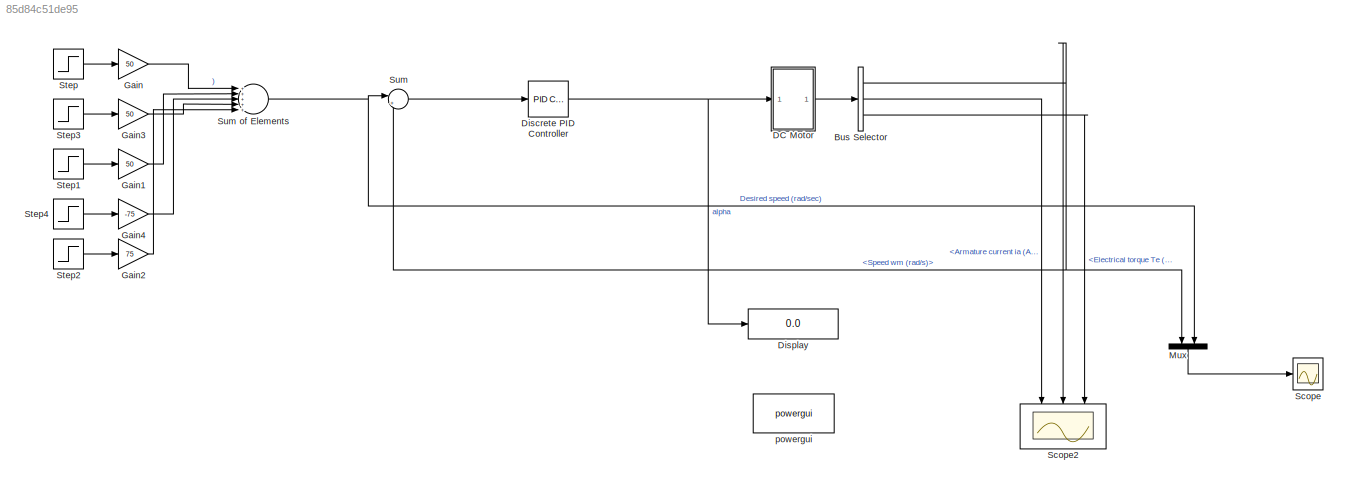
MODEL slx_85d84c51de95
KIND model
CONFIG AbsTol = auto
CONFIG EnableMultiTasking = off
CONFIG FixedStep = auto
CONFIG MaxStep = auto
CONFIG MinStep = auto
CONFIG RelTol = 1e-3
CONFIG SampleTimeConstraint = Unconstrained
CONFIG Solver = VariableStepAuto
CONFIG SolverName = VariableStepAuto
CONFIG StartTime = 0.0
CONFIG StopTime = 35
BLOCK [BusSelector] Bus Selector
  OutputAsBus = off
  OutputSignals = Speed wm (rad/s),Armature current ia (A),Electrical torque Te (n m)
  Ports = [1, 3]
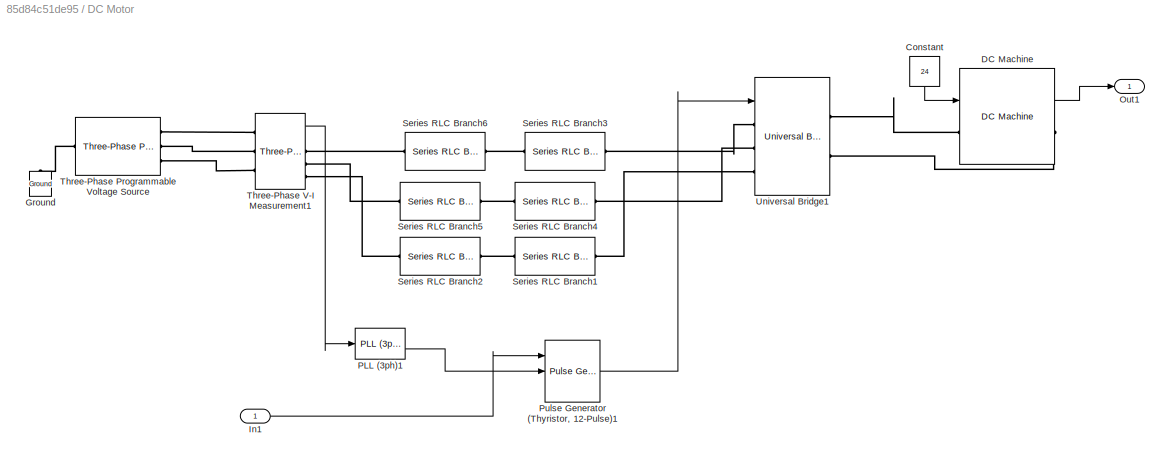
BLOCK [SubSystem] DC Motor
  Ports = [1, 1]
  RequestExecContextInheritance = off
BLOCK [Constant] DC Motor/Constant
  Value = 24
BLOCK [Reference] DC Motor/DC Machine  REF=powerlib/Machines/DC Machine
  Ports = [1, 1, 0, 0, 0, 1, 1]
  SourceBlock = powerlib/Machines/DC Machine
  SourceProductBaseCode = PS
  SourceProductName = Simscape Power Systems
  SourceType = DC machine
BLOCK [Reference] DC Motor/Ground  REF=powerlib/Elements/Ground
  Ports = [0, 0, 0, 0, 0, 1]
  SourceBlock = powerlib/Elements/Ground
  SourceProductBaseCode = PS
  SourceProductName = Simscape Power Systems
  SourceType = Ground
BLOCK [Inport] DC Motor/In1
  IconDisplay = Port number
BLOCK [Outport] DC Motor/Out1
  IconDisplay = Port number
BLOCK [Reference] DC Motor/PLL (3ph)1  REF=powerlib_meascontrol/PLL/PLL
(3ph)
  Ports = [1, 2]
  SourceBlock = powerlib_meascontrol/PLL/PLL\n(3ph)
  SourceProductBaseCode = PS
  SourceProductName = Simscape Power Systems
  SourceType = PLL (3ph)
BLOCK [Reference] DC Motor/Pulse Generator (Thyristor, 12-Pulse)1  REF=powerlib_meascontrol/Pulse & Signal
Generators/Pulse Generator
(Thyristor, 12-Pulse)
  Ports = [3, 1]
  SourceBlock = powerlib_meascontrol/Pulse & Signal\nGenerators/Pulse Generator\n(Thyristor, 12-Pulse)
  SourceProductBaseCode = PS
  SourceProductName = Simscape Power Systems
  SourceType = Pulse Generator (Thyristor)
BLOCK [Reference] DC Motor/Series RLC Branch1  REF=powerlib/Elements/Series RLC Branch
  Ports = [0, 0, 0, 0, 0, 1, 1]
  SourceBlock = powerlib/Elements/Series RLC Branch
  SourceProductBaseCode = PS
  SourceProductName = Simscape Power Systems
  SourceType = Series RLC Branch
BLOCK [Reference] DC Motor/Series RLC Branch2  REF=powerlib/Elements/Series RLC Branch
  Ports = [0, 0, 0, 0, 0, 1, 1]
  SourceBlock = powerlib/Elements/Series RLC Branch
  SourceProductBaseCode = PS
  SourceProductName = Simscape Power Systems
  SourceType = Series RLC Branch
BLOCK [Reference] DC Motor/Series RLC Branch3  REF=powerlib/Elements/Series RLC Branch
  Ports = [0, 0, 0, 0, 0, 1, 1]
  SourceBlock = powerlib/Elements/Series RLC Branch
  SourceProductBaseCode = PS
  SourceProductName = Simscape Power Systems
  SourceType = Series RLC Branch
BLOCK [Reference] DC Motor/Series RLC Branch4  REF=powerlib/Elements/Series RLC Branch
  Ports = [0, 0, 0, 0, 0, 1, 1]
  SourceBlock = powerlib/Elements/Series RLC Branch
  SourceProductBaseCode = PS
  SourceProductName = Simscape Power Systems
  SourceType = Series RLC Branch
BLOCK [Reference] DC Motor/Series RLC Branch5  REF=powerlib/Elements/Series RLC Branch
  Ports = [0, 0, 0, 0, 0, 1, 1]
  SourceBlock = powerlib/Elements/Series RLC Branch
  SourceProductBaseCode = PS
  SourceProductName = Simscape Power Systems
  SourceType = Series RLC Branch
BLOCK [Reference] DC Motor/Series RLC Branch6  REF=powerlib/Elements/Series RLC Branch
  Ports = [0, 0, 0, 0, 0, 1, 1]
  SourceBlock = powerlib/Elements/Series RLC Branch
  SourceProductBaseCode = PS
  SourceProductName = Simscape Power Systems
  SourceType = Series RLC Branch
BLOCK [Reference] DC Motor/Three-Phase Programmable Voltage Source  REF=powerlib/Electrical
Sources/Three-Phase
Programmable
Voltage Source
  Ports = [0, 0, 0, 0, 0, 1, 3]
  SourceBlock = powerlib/Electrical\nSources/Three-Phase\nProgrammable\nVoltage Source
  SourceProductBaseCode = PS
  SourceProductName = Simscape Power Systems
  SourceType = Three-Phase Programmable Voltage Source
BLOCK [Reference] DC Motor/Three-Phase V-I Measurement1  REF=powerlib/Measurements/Three-Phase
V-I Measurement
  Ports = [0, 2, 0, 0, 0, 3, 3]
  SourceBlock = powerlib/Measurements/Three-Phase\nV-I Measurement
  SourceProductBaseCode = PS
  SourceProductName = Simscape Power Systems
  SourceType = Three-Phase VI Measurement
BLOCK [Reference] DC Motor/Universal Bridge1  REF=powerlib/Power
Electronics/Universal Bridge
  Ports = [1, 0, 0, 0, 0, 3, 2]
  SourceBlock = powerlib/Power\nElectronics/Universal Bridge
  SourceProductBaseCode = PS
  SourceProductName = Simscape Power Systems
  SourceType = Universal Bridge
BLOCK [Reference] Discrete PID Controller  REF=simulink/Continuous/PID Controller
  Ports = [1, 1]
  SourceBlock = simulink/Continuous/PID Controller
  SourceProductBaseCode = SL
  SourceProductName = Simulink
  SourceType = PID 1dof
BLOCK [Display] Display
  Decimation = 1
  Ports = [1]
BLOCK [Gain] Gain
  Gain = 50
  OutDataTypeStr = Inherit: Inherit via internal rule
  ParamDataTypeStr = Inherit: Inherit via internal rule
  SaturateOnIntegerOverflow = off
BLOCK [Gain] Gain1
  Gain = 50
  OutDataTypeStr = Inherit: Inherit via internal rule
  ParamDataTypeStr = Inherit: Inherit via internal rule
  SaturateOnIntegerOverflow = off
BLOCK [Gain] Gain2
  Gain = 75
  OutDataTypeStr = Inherit: Inherit via internal rule
  ParamDataTypeStr = Inherit: Inherit via internal rule
  SaturateOnIntegerOverflow = off
BLOCK [Gain] Gain3
  Gain = 50
  OutDataTypeStr = Inherit: Inherit via internal rule
  ParamDataTypeStr = Inherit: Inherit via internal rule
  SaturateOnIntegerOverflow = off
BLOCK [Gain] Gain4
  Gain = -75
  OutDataTypeStr = Inherit: Inherit via internal rule
  ParamDataTypeStr = Inherit: Inherit via internal rule
  SaturateOnIntegerOverflow = off
BLOCK [Mux] Mux
  DisplayOption = bar
  Inputs = 2
  Ports = [2, 1]
BLOCK [Scope] Scope
  Floating = off
  NumInputPorts = 1
  Ports = [1]
  ScopeSpecificationString = Simulink.scopes.TimeScopeBlockCfg('CurrentConfiguration', extmgr.ConfigurationSet(extmgr.Configuration('Core','General UI',true,'FigureColor',[1 1 1]),extmgr.Configuration('Core','Source UI',true),extmgr.Configuration('Sources','WiredSimulink',true,'DataLoggingVariableName','ScopeData1'),extmgr.Configuration('Visuals','Time Domain',true,'SerializedDisplays',{struct('MinYLimReal','-18.69862','MaxYL...<+1795ch>
BLOCK [Scope] Scope2
  Floating = off
  NumInputPorts = 3
  Ports = [3]
  ScopeSpecificationString = Simulink.scopes.TimeScopeBlockCfg('CurrentConfiguration', extmgr.ConfigurationSet(extmgr.Configuration('Core','General UI',true,'FigureColor',[1 1 1]),extmgr.Configuration('Core','Source UI',true),extmgr.Configuration('Sources','WiredSimulink',true,'DataLoggingSaveFormat','StructureWithTime','DataLoggingDecimation','1','DataLoggingDecimateData',true),extmgr.Configuration('Visuals','Time Domain',tr...<+3567ch>
BLOCK [Step] Step
  SampleTime = 0
  Time = 0
BLOCK [Step] Step1
  SampleTime = 0
  Time = 5
BLOCK [Step] Step2
  SampleTime = 0
  Time = 25
BLOCK [Step] Step3
  SampleTime = 0
  Time = 3
BLOCK [Step] Step4
  SampleTime = 0
  Time = 15
BLOCK [Sum] Sum
  IconShape = round
  InputSameDT = off
  Inputs = |+-
  OutDataTypeStr = Inherit: Inherit via internal rule
  Ports = [2, 1]
  SaturateOnIntegerOverflow = off
BLOCK [Sum] Sum of Elements
  InputSameDT = off
  Inputs = +++++
  OutDataTypeStr = Inherit: Inherit via internal rule
  Ports = [5, 1]
  SaturateOnIntegerOverflow = off
BLOCK [Reference] powergui  REF=powerlib/powergui
  Ports = []
  Priority = 1
  SourceBlock = powerlib/powergui
  SourceProductBaseCode = PS
  SourceProductName = Simscape Power Systems
  SourceType = PSB option menu block
NET Bus Selector:1 -> Mux:1, Scope2:2, Sum:2
LINE Bus Selector:2 -> Scope2:1
LINE Bus Selector:3 -> Scope2:3
LINE DC Motor/Constant:1 -> DC Motor/DC Machine:1
LINE DC Motor/DC Machine:1 -> DC Motor/Out1:1
LINE DC Motor/In1:1 -> DC Motor/Pulse Generator (Thyristor, 12-Pulse)1:1
LINE DC Motor/PLL (3ph)1:2 -> DC Motor/Pulse Generator (Thyristor, 12-Pulse)1:2
LINE DC Motor/Pulse Generator (Thyristor, 12-Pulse)1:1 -> DC Motor/Universal Bridge1:1
LINE DC Motor/Three-Phase V-I Measurement1:1 -> DC Motor/PLL (3ph)1:1
LINE DC Motor:1 -> Bus Selector:1
NET Discrete PID Controller:1 -> DC Motor:1, Display:1
LINE Gain1:1 -> Sum of Elements:2
LINE Gain2:1 -> Sum of Elements:5
LINE Gain3:1 -> Sum of Elements:4
LINE Gain4:1 -> Sum of Elements:3
LINE Gain:1 -> Sum of Elements:1
LINE Mux:1 -> Scope:1
LINE Step1:1 -> Gain1:1
LINE Step2:1 -> Gain2:1
LINE Step3:1 -> Gain3:1
LINE Step4:1 -> Gain4:1
LINE Step:1 -> Gain:1
NET Sum of Elements:1 -> Mux:2, Sum:1
LINE Sum:1 -> Discrete PID Controller:1
PLINE DC Motor/DC Machine:LConn1 -- DC Motor/Universal Bridge1:RConn1
PLINE DC Motor/DC Machine:RConn1 -- DC Motor/Universal Bridge1:RConn2
PLINE DC Motor/Ground:LConn1 -- DC Motor/Three-Phase Programmable Voltage Source:LConn1
PLINE DC Motor/Series RLC Branch1:LConn1 -- DC Motor/Universal Bridge1:LConn3
PLINE DC Motor/Series RLC Branch1:RConn1 -- DC Motor/Series RLC Branch2:LConn1
PLINE DC Motor/Series RLC Branch2:RConn1 -- DC Motor/Three-Phase V-I Measurement1:RConn3
PLINE DC Motor/Series RLC Branch3:LConn1 -- DC Motor/Universal Bridge1:LConn1
PLINE DC Motor/Series RLC Branch3:RConn1 -- DC Motor/Series RLC Branch6:LConn1
PLINE DC Motor/Series RLC Branch4:LConn1 -- DC Motor/Universal Bridge1:LConn2
PLINE DC Motor/Series RLC Branch4:RConn1 -- DC Motor/Series RLC Branch5:LConn1
PLINE DC Motor/Series RLC Branch5:RConn1 -- DC Motor/Three-Phase V-I Measurement1:RConn2
PLINE DC Motor/Series RLC Branch6:RConn1 -- DC Motor/Three-Phase V-I Measurement1:RConn1
PLINE DC Motor/Three-Phase Programmable Voltage Source:RConn1 -- DC Motor/Three-Phase V-I Measurement1:LConn1
PLINE DC Motor/Three-Phase Programmable Voltage Source:RConn2 -- DC Motor/Three-Phase V-I Measurement1:LConn2
PLINE DC Motor/Three-Phase Programmable Voltage Source:RConn3 -- DC Motor/Three-Phase V-I Measurement1:LConn3
note: NET lines group one-source signal fan-out (src -> all destinations, sorted); 1:1 wires keep LINE
